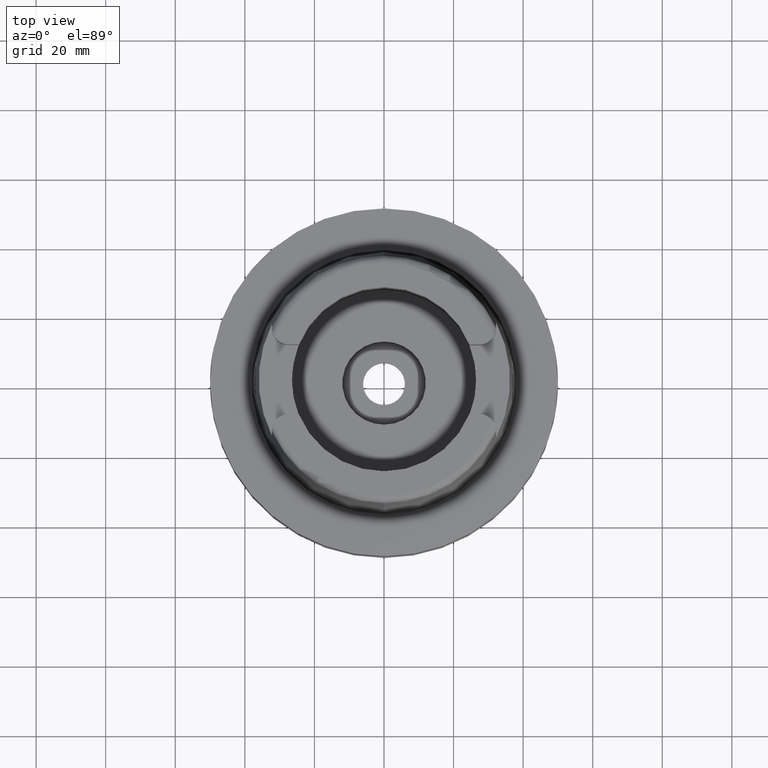
[diagram: clean part render]
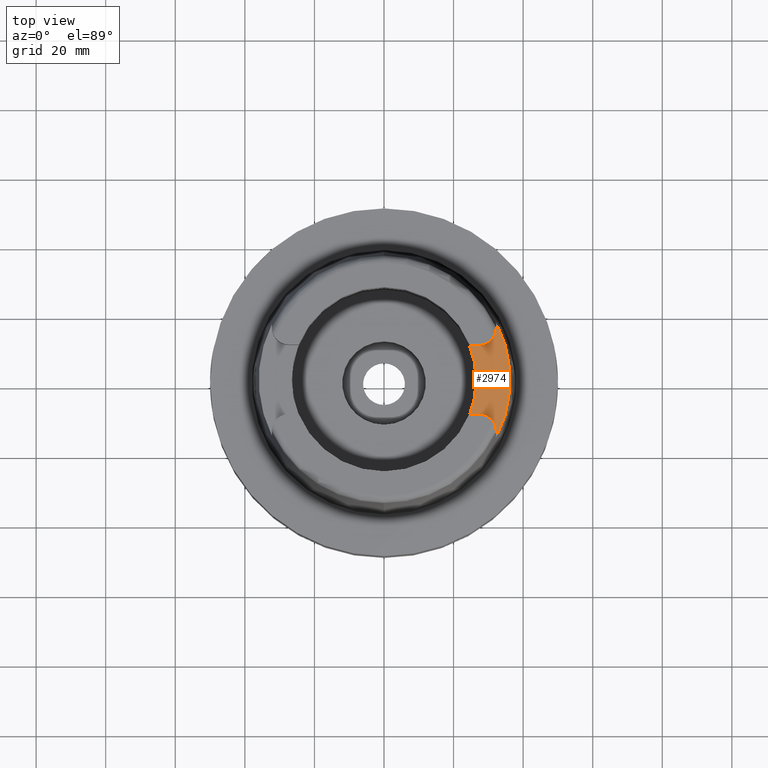
[diagram: same view with one face highlighted and labeled with its STEP entity id]
A machine part, top view. The second image highlights one B-rep face of the part: STEP entity #2974.
In plain terms, the highlighted planar face has unit normal (0, 0, 1).
Its self-contained STEP definition (entity closure, byte-faithful):
#417=CARTESIAN_POINT('',(0.E0,1.932247719695E-14,3.5E1));
#418=DIRECTION('',(0.E0,0.E0,1.E0));
#419=DIRECTION('',(9.259134021805E-1,-3.777358490566E-1,0.E0));
#420=AXIS2_PLACEMENT_3D('',#417,#418,#419);
#425=DIRECTION('',(1.E0,-1.454542536838E-13,0.E0));
#426=VECTOR('',#425,2.833294842218E0);
#427=CARTESIAN_POINT('',(2.453670515778E1,1.001E1,3.5E1));
#428=LINE('',#427,#426);
#432=CARTESIAN_POINT('',(2.737E1,1.489E1,3.5E1));
#433=DIRECTION('',(0.E0,0.E0,1.E0));
#434=DIRECTION('',(0.E0,-1.E0,0.E0));
#435=AXIS2_PLACEMENT_3D('',#432,#433,#434);
#440=DIRECTION('',(1.280555751516E-5,9.999999999180E-1,2.136635785524E-14));
#441=VECTOR('',#440,1.662760542939E0);
#442=CARTESIAN_POINT('',(3.225E1,1.489E1,3.5E1));
#443=LINE('',#442,#441);
#447=CARTESIAN_POINT('',(0.E0,1.519173610602E-14,3.5E1));
#448=DIRECTION('',(0.E0,0.E0,-1.E0));
#449=DIRECTION('',(8.896561898443E-1,4.566309931135E-1,0.E0));
#450=AXIS2_PLACEMENT_3D('',#447,#448,#449);
#455=DIRECTION('',(2.841400850032E-6,9.999999999960E-1,-2.136488160128E-14));
#456=VECTOR('',#455,1.662875435073E0);
#457=CARTESIAN_POINT('',(3.224999527510E1,-1.655287543507E1,3.5E1));
#458=LINE('',#457,#456);
#462=CARTESIAN_POINT('',(2.737E1,-1.489E1,3.5E1));
#463=DIRECTION('',(0.E0,0.E0,1.E0));
#464=DIRECTION('',(1.E0,0.E0,0.E0));
#465=AXIS2_PLACEMENT_3D('',#462,#463,#464);
#470=DIRECTION('',(-1.E0,-1.423194637337E-13,0.E0));
#471=VECTOR('',#470,2.833294842218E0);
#472=CARTESIAN_POINT('',(2.737E1,-1.001E1,3.5E1));
#473=LINE('',#472,#471);
#2438=CARTESIAN_POINT('',(3.225E1,1.655285457013E1,3.5E1));
#2439=CARTESIAN_POINT('',(3.225E1,-1.655285457013E1,3.5E1));
#2440=VERTEX_POINT('',#2438);
#2441=VERTEX_POINT('',#2439);
#2444=CARTESIAN_POINT('',(2.453670515778E1,-1.001E1,3.5E1));
#2445=CARTESIAN_POINT('',(2.453670515778E1,1.001E1,3.5E1));
#2446=VERTEX_POINT('',#2444);
#2447=VERTEX_POINT('',#2445);
#2448=CARTESIAN_POINT('',(2.737E1,1.001E1,3.5E1));
#2449=VERTEX_POINT('',#2448);
#2450=CARTESIAN_POINT('',(3.225E1,1.489E1,3.5E1));
#2451=VERTEX_POINT('',#2450);
#2452=CARTESIAN_POINT('',(3.225E1,-1.489E1,3.5E1));
#2453=VERTEX_POINT('',#2452);
#2454=CARTESIAN_POINT('',(2.737E1,-1.001E1,3.5E1));
#2455=VERTEX_POINT('',#2454);
#2952=CARTESIAN_POINT('',(0.E0,0.E0,3.5E1));
#2953=DIRECTION('',(0.E0,0.E0,1.E0));
#2954=DIRECTION('',(1.E0,0.E0,0.E0));
#2955=AXIS2_PLACEMENT_3D('',#2952,#2953,#2954);
#2956=PLANE('',#2955);
#2958=ORIENTED_EDGE('',*,*,#2957,.T.);
#2960=ORIENTED_EDGE('',*,*,#2959,.T.);
#2962=ORIENTED_EDGE('',*,*,#2961,.T.);
#2964=ORIENTED_EDGE('',*,*,#2963,.T.);
#2965=ORIENTED_EDGE('',*,*,#2928,.T.);
#2967=ORIENTED_EDGE('',*,*,#2966,.T.);
#2969=ORIENTED_EDGE('',*,*,#2968,.T.);
#2971=ORIENTED_EDGE('',*,*,#2970,.T.);
#2972=EDGE_LOOP('',(#2958,#2960,#2962,#2964,#2965,#2967,#2969,#2971));
#2973=FACE_OUTER_BOUND('',#2972,.F.);
#421=CIRCLE('',#420,2.65E1);
#436=CIRCLE('',#435,4.88E0);
#451=CIRCLE('',#450,3.624995854370E1);
#466=CIRCLE('',#465,4.88E0);
#2928=EDGE_CURVE('',#2440,#2441,#451,.T.);
#2957=EDGE_CURVE('',#2446,#2447,#421,.T.);
#2959=EDGE_CURVE('',#2447,#2449,#428,.T.);
#2961=EDGE_CURVE('',#2449,#2451,#436,.T.);
#2963=EDGE_CURVE('',#2451,#2440,#443,.T.);
#2966=EDGE_CURVE('',#2441,#2453,#458,.T.);
#2968=EDGE_CURVE('',#2453,#2455,#466,.T.);
#2970=EDGE_CURVE('',#2455,#2446,#473,.T.);
#2974=ADVANCED_FACE('',(#2973),#2956,.T.);